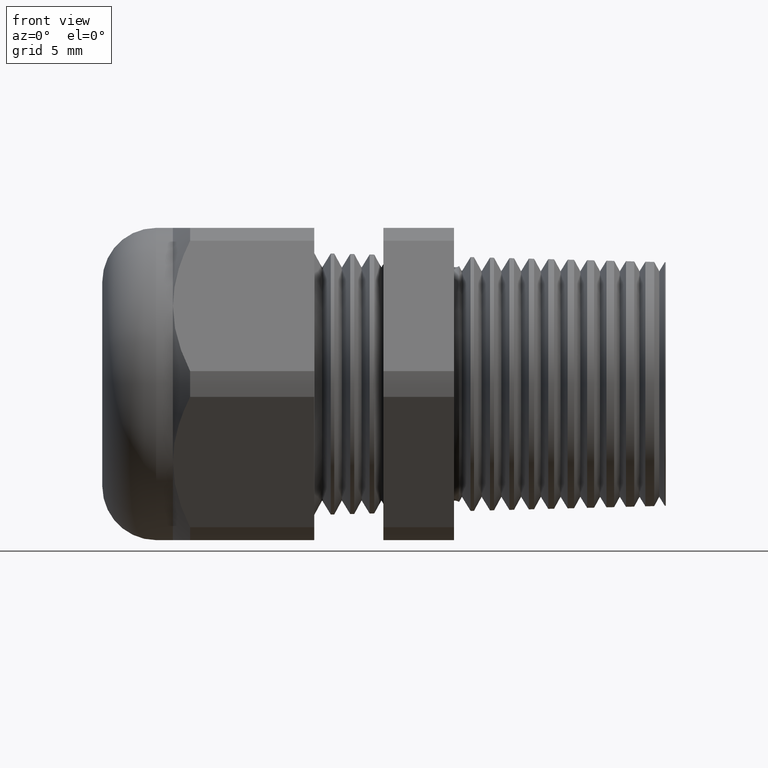
[diagram: clean part render]
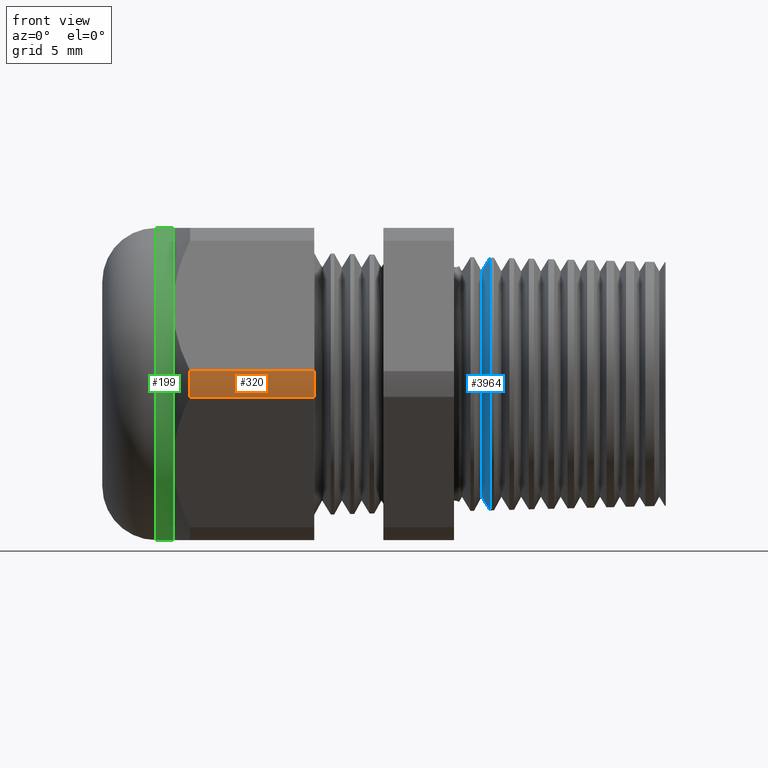
[diagram: same view with three faces highlighted in distinct colors, each labeled with its STEP entity id]
A machine part, front view with three faces highlighted in distinct colors.
Their STEP definitions:

[orange] entity #320 — the highlighted cylindrical surface (partial cylindrical patch) has radius 12.2644 mm, axis along (-1, 0, 0).
#246 = EDGE_CURVE ( 'NONE', #324, #298, #1546, .T. ) ;
#297 = EDGE_CURVE ( 'NONE', #298, #299, #1678, .T. ) ;
#298 = VERTEX_POINT ( 'NONE', #1674 ) ;
#299 = VERTEX_POINT ( 'NONE', #1673 ) ;
#320 = ADVANCED_FACE ( 'NONE', ( #1687 ), #1686, .T. ) ;
#321 = EDGE_LOOP ( 'NONE', ( #322, #326, #328, #329 ) ) ;
#322 = ORIENTED_EDGE ( 'NONE', *, *, #323, .T. ) ;
#323 = EDGE_CURVE ( 'NONE', #324, #325, #1739, .T. ) ;
#324 = VERTEX_POINT ( 'NONE', #1735 ) ;
#325 = VERTEX_POINT ( 'NONE', #1734 ) ;
#326 = ORIENTED_EDGE ( 'NONE', *, *, #327, .T. ) ;
#327 = EDGE_CURVE ( 'NONE', #325, #299, #1733, .T. ) ;
#328 = ORIENTED_EDGE ( 'NONE', *, *, #297, .F. ) ;
#329 = ORIENTED_EDGE ( 'NONE', *, *, #246, .F. ) ;
#1543 = DIRECTION ( 'NONE',  ( 0.0000000000000000000, 0.0000000000000000000, -1.000000000000000000 ) ) ;
#1544 = DIRECTION ( 'NONE',  ( 1.000000000000000000, 0.0000000000000000000, 0.0000000000000000000 ) ) ;
#1545 = AXIS2_PLACEMENT_3D ( 'NONE', #1550, #1544, #1543 ) ;
#1546 = CIRCLE ( 'NONE', #1545, 0.4828500000000001700 ) ;
#1550 = CARTESIAN_POINT ( 'NONE',  ( -0.6994488188976376600, 0.0000000000000000000, 0.0000000000000000000 ) ) ;
#1673 = CARTESIAN_POINT ( 'NONE',  ( -1.045299606299212600, -0.4815054990391103900, -0.03600801154045415300 ) ) ;
#1674 = CARTESIAN_POINT ( 'NONE',  ( -0.6994488188976376600, -0.4815054990391102200, -0.03600801154045414600 ) ) ;
#1675 = DIRECTION ( 'NONE',  ( -1.000000000000000000, 0.0000000000000000000, 0.0000000000000000000 ) ) ;
#1676 = VECTOR ( 'NONE', #1675, 39.37007874015748100 ) ;
#1677 = CARTESIAN_POINT ( 'NONE',  ( 0.2800000000000000300, -0.4815054990391102200, -0.03600801154045414600 ) ) ;
#1678 = LINE ( 'NONE', #1677, #1676 ) ;
#1685 = CARTESIAN_POINT ( 'NONE',  ( 0.2800000000000000300, 0.0000000000000000000, 0.0000000000000000000 ) ) ;
#1686 = CYLINDRICAL_SURFACE ( 'NONE', #1742, 0.4828500000000001700 ) ;
#1687 = FACE_OUTER_BOUND ( 'NONE', #321, .T. ) ;
#1729 = DIRECTION ( 'NONE',  ( 0.0000000000000000000, 0.0000000000000000000, -1.000000000000000000 ) ) ;
#1730 = DIRECTION ( 'NONE',  ( 1.000000000000000000, 0.0000000000000000000, 0.0000000000000000000 ) ) ;
#1731 = CARTESIAN_POINT ( 'NONE',  ( -1.045299606299212600, 0.0000000000000000000, 0.0000000000000000000 ) ) ;
#1732 = AXIS2_PLACEMENT_3D ( 'NONE', #1731, #1730, #1729 ) ;
#1733 = CIRCLE ( 'NONE', #1732, 0.4828500000000001700 ) ;
#1734 = CARTESIAN_POINT ( 'NONE',  ( -1.045299606299212600, -0.4815054990391102700, 0.03600801154045390300 ) ) ;
#1735 = CARTESIAN_POINT ( 'NONE',  ( -0.6994488188976376600, -0.4815054990391103900, 0.03600801154045398700 ) ) ;
#1736 = DIRECTION ( 'NONE',  ( -1.000000000000000000, 0.0000000000000000000, 0.0000000000000000000 ) ) ;
#1737 = VECTOR ( 'NONE', #1736, 39.37007874015748100 ) ;
#1738 = CARTESIAN_POINT ( 'NONE',  ( 0.2800000000000000300, -0.4815054990391103900, 0.03600801154045398700 ) ) ;
#1739 = LINE ( 'NONE', #1738, #1737 ) ;
#1740 = DIRECTION ( 'NONE',  ( 0.0000000000000000000, 0.0000000000000000000, 1.000000000000000000 ) ) ;
#1741 = DIRECTION ( 'NONE',  ( -1.000000000000000000, 0.0000000000000000000, 0.0000000000000000000 ) ) ;
#1742 = AXIS2_PLACEMENT_3D ( 'NONE', #1685, #1741, #1740 ) ;

[blue] entity #3964 — the highlighted conical surface has half-angle 58.5 deg.
#608 = EDGE_CURVE ( 'NONE', #3866, #3857, #2242, .T. ) ;
#2242 = CIRCLE ( 'NONE', #2300, 0.3521753825824424600 ) ;
#2297 = DIRECTION ( 'NONE',  ( 0.0000000000000000000, 0.0000000000000000000, -1.000000000000000000 ) ) ;
#2298 = DIRECTION ( 'NONE',  ( -1.000000000000000000, 0.0000000000000000000, 0.0000000000000000000 ) ) ;
#2299 = CARTESIAN_POINT ( 'NONE',  ( -0.2096964386471805200, 0.0000000000000000000, 0.0000000000000000000 ) ) ;
#2300 = AXIS2_PLACEMENT_3D ( 'NONE', #2299, #2298, #2297 ) ;
#3357 = CARTESIAN_POINT ( 'NONE',  ( -0.2329609809054343500, 4.087577259319993000E-017, -0.3142111000480301000 ) ) ;
#3358 = CARTESIAN_POINT ( 'NONE',  ( -0.2096964386471805200, 0.0000000000000000000, 0.3521753825824423500 ) ) ;
#3379 = DIRECTION ( 'NONE',  ( 0.5224985647159459100, 1.044183048100714500E-016, 0.8526401643540939500 ) ) ;
#3380 = CARTESIAN_POINT ( 'NONE',  ( -0.2329609809054343500, 3.847976179303888500E-017, 0.3142111000480301000 ) ) ;
#3381 = LINE ( 'NONE', #3380, #3442 ) ;
#3393 = DIRECTION ( 'NONE',  ( 0.5224985647159459100, 0.0000000000000000000, -0.8526401643540939500 ) ) ;
#3394 = VECTOR ( 'NONE', #3393, 39.37007874015748100 ) ;
#3395 = CARTESIAN_POINT ( 'NONE',  ( -0.2329609809054343500, 0.0000000000000000000, -0.3142111000480301000 ) ) ;
#3396 = LINE ( 'NONE', #3395, #3394 ) ;
#3403 = CARTESIAN_POINT ( 'NONE',  ( -0.2096964386471805200, 4.312904550180825500E-017, -0.3521753825824423500 ) ) ;
#3404 = CARTESIAN_POINT ( 'NONE',  ( -0.2329609809054343500, 0.0000000000000000000, 0.3142111000480301000 ) ) ;
#3442 = VECTOR ( 'NONE', #3379, 39.37007874015748100 ) ;
#3542 = DIRECTION ( 'NONE',  ( 0.0000000000000000000, 0.0000000000000000000, -1.000000000000000000 ) ) ;
#3543 = DIRECTION ( 'NONE',  ( 1.000000000000000000, 0.0000000000000000000, 0.0000000000000000000 ) ) ;
#3544 = CARTESIAN_POINT ( 'NONE',  ( -0.2329609809054343500, 0.0000000000000000000, 0.0000000000000000000 ) ) ;
#3545 = AXIS2_PLACEMENT_3D ( 'NONE', #3544, #3543, #3542 ) ;
#3547 = CONICAL_SURFACE ( 'NONE', #3545, 0.3142111000480301000, 1.021017612416686300 ) ;
#3548 = FACE_OUTER_BOUND ( 'NONE', #3963, .T. ) ;
#3596 = DIRECTION ( 'NONE',  ( 0.0000000000000000000, 0.0000000000000000000, -1.000000000000000000 ) ) ;
#3597 = DIRECTION ( 'NONE',  ( 1.000000000000000000, 0.0000000000000000000, 0.0000000000000000000 ) ) ;
#3598 = AXIS2_PLACEMENT_3D ( 'NONE', #3604, #3597, #3596 ) ;
#3599 = CIRCLE ( 'NONE', #3598, 0.3142111000480301000 ) ;
#3604 = CARTESIAN_POINT ( 'NONE',  ( -0.2329609809054343500, 0.0000000000000000000, 0.0000000000000000000 ) ) ;
#3857 = VERTEX_POINT ( 'NONE', #3358 ) ;
#3859 = VERTEX_POINT ( 'NONE', #3357 ) ;
#3864 = VERTEX_POINT ( 'NONE', #3404 ) ;
#3866 = VERTEX_POINT ( 'NONE', #3403 ) ;
#3870 = EDGE_CURVE ( 'NONE', #3859, #3866, #3396, .T. ) ;
#3877 = EDGE_CURVE ( 'NONE', #3864, #3857, #3381, .T. ) ;
#3963 = EDGE_LOOP ( 'NONE', ( #3978, #3977, #3979, #3981 ) ) ;
#3964 = ADVANCED_FACE ( 'NONE', ( #3548 ), #3547, .T. ) ;
#3975 = EDGE_CURVE ( 'NONE', #3864, #3859, #3599, .T. ) ;
#3977 = ORIENTED_EDGE ( 'NONE', *, *, #3975, .T. ) ;
#3978 = ORIENTED_EDGE ( 'NONE', *, *, #3877, .F. ) ;
#3979 = ORIENTED_EDGE ( 'NONE', *, *, #3870, .T. ) ;
#3981 = ORIENTED_EDGE ( 'NONE', *, *, #608, .T. ) ;

[green] entity #199 — the highlighted cylindrical surface (partial cylindrical patch) has radius 11.049 mm, axis along (1, 0, 0).
#192 = EDGE_CURVE ( 'NONE', #842, #841, #1447, .T. ) ;
#193 = ORIENTED_EDGE ( 'NONE', *, *, #192, .T. ) ;
#199 = ADVANCED_FACE ( 'NONE', ( #1493 ), #1492, .T. ) ;
#200 = EDGE_LOOP ( 'NONE', ( #201, #193, #803, #804, #802, #799 ) ) ;
#201 = ORIENTED_EDGE ( 'NONE', *, *, #3904, .F. ) ;
#302 = VERTEX_POINT ( 'NONE', #1671 ) ;
#449 = VERTEX_POINT ( 'NONE', #1977 ) ;
#799 = ORIENTED_EDGE ( 'NONE', *, *, #801, .F. ) ;
#800 = EDGE_CURVE ( 'NONE', #449, #302, #2581, .T. ) ;
#801 = EDGE_CURVE ( 'NONE', #3898, #449, #2576, .T. ) ;
#802 = ORIENTED_EDGE ( 'NONE', *, *, #800, .F. ) ;
#803 = ORIENTED_EDGE ( 'NONE', *, *, #4050, .T. ) ;
#804 = ORIENTED_EDGE ( 'NONE', *, *, #805, .F. ) ;
#805 = EDGE_CURVE ( 'NONE', #302, #4056, #2571, .T. ) ;
#841 = VERTEX_POINT ( 'NONE', #2673 ) ;
#842 = VERTEX_POINT ( 'NONE', #2672 ) ;
#1443 = DIRECTION ( 'NONE',  ( 0.0000000000000000000, 0.0000000000000000000, 1.000000000000000000 ) ) ;
#1444 = DIRECTION ( 'NONE',  ( 1.000000000000000000, 0.0000000000000000000, 0.0000000000000000000 ) ) ;
#1445 = CARTESIAN_POINT ( 'NONE',  ( -1.139999999999999900, 0.0000000000000000000, 0.0000000000000000000 ) ) ;
#1446 = AXIS2_PLACEMENT_3D ( 'NONE', #1445, #1444, #1443 ) ;
#1447 = CIRCLE ( 'NONE', #1446, 0.4350000000000000000 ) ;
#1488 = DIRECTION ( 'NONE',  ( 0.0000000000000000000, 0.0000000000000000000, -1.000000000000000000 ) ) ;
#1489 = DIRECTION ( 'NONE',  ( 1.000000000000000000, 0.0000000000000000000, 0.0000000000000000000 ) ) ;
#1490 = CARTESIAN_POINT ( 'NONE',  ( 0.0000000000000000000, 0.0000000000000000000, 0.0000000000000000000 ) ) ;
#1491 = AXIS2_PLACEMENT_3D ( 'NONE', #1490, #1489, #1488 ) ;
#1492 = CYLINDRICAL_SURFACE ( 'NONE', #1491, 0.4350000000000000000 ) ;
#1493 = FACE_OUTER_BOUND ( 'NONE', #200, .T. ) ;
#1671 = CARTESIAN_POINT ( 'NONE',  ( -1.093149606299212500, -0.3767210506462307900, -0.2175000000000000000 ) ) ;
#1977 = CARTESIAN_POINT ( 'NONE',  ( -1.093149606299212500, -0.3767210506462310100, 0.2174999999999999400 ) ) ;
#2567 = DIRECTION ( 'NONE',  ( 0.0000000000000000000, 0.0000000000000000000, -1.000000000000000000 ) ) ;
#2568 = DIRECTION ( 'NONE',  ( 1.000000000000000000, 0.0000000000000000000, 0.0000000000000000000 ) ) ;
#2569 = CARTESIAN_POINT ( 'NONE',  ( -1.093149606299212500, 0.0000000000000000000, 0.0000000000000000000 ) ) ;
#2570 = AXIS2_PLACEMENT_3D ( 'NONE', #2569, #2568, #2567 ) ;
#2571 = CIRCLE ( 'NONE', #2570, 0.4350000000000000000 ) ;
#2572 = DIRECTION ( 'NONE',  ( 0.0000000000000000000, 0.0000000000000000000, -1.000000000000000000 ) ) ;
#2573 = DIRECTION ( 'NONE',  ( 1.000000000000000000, 0.0000000000000000000, 0.0000000000000000000 ) ) ;
#2574 = CARTESIAN_POINT ( 'NONE',  ( -1.093149606299212500, 0.0000000000000000000, 0.0000000000000000000 ) ) ;
#2575 = AXIS2_PLACEMENT_3D ( 'NONE', #2574, #2573, #2572 ) ;
#2576 = CIRCLE ( 'NONE', #2575, 0.4350000000000000000 ) ;
#2577 = DIRECTION ( 'NONE',  ( 0.0000000000000000000, 0.0000000000000000000, -1.000000000000000000 ) ) ;
#2578 = DIRECTION ( 'NONE',  ( 1.000000000000000000, 0.0000000000000000000, 0.0000000000000000000 ) ) ;
#2579 = CARTESIAN_POINT ( 'NONE',  ( -1.093149606299212500, 0.0000000000000000000, 0.0000000000000000000 ) ) ;
#2580 = AXIS2_PLACEMENT_3D ( 'NONE', #2579, #2578, #2577 ) ;
#2581 = CIRCLE ( 'NONE', #2580, 0.4350000000000000000 ) ;
#2672 = CARTESIAN_POINT ( 'NONE',  ( -1.139999999999999900, 5.327213576290986400E-017, 0.4350000000000000000 ) ) ;
#2673 = CARTESIAN_POINT ( 'NONE',  ( -1.139999999999999900, 0.0000000000000000000, -0.4350000000000000000 ) ) ;
#3456 = DIRECTION ( 'NONE',  ( 1.000000000000000000, 0.0000000000000000000, 0.0000000000000000000 ) ) ;
#3457 = VECTOR ( 'NONE', #3456, 39.37007874015748100 ) ;
#3458 = CARTESIAN_POINT ( 'NONE',  ( 0.0000000000000000000, 5.327213576290986400E-017, 0.4350000000000000000 ) ) ;
#3459 = LINE ( 'NONE', #3458, #3457 ) ;
#3466 = CARTESIAN_POINT ( 'NONE',  ( -1.093149606299212500, 0.0000000000000000000, 0.4349999999999998900 ) ) ;
#3667 = CARTESIAN_POINT ( 'NONE',  ( -1.093149606299212500, 0.0000000000000000000, -0.4350000000000000500 ) ) ;
#3675 = DIRECTION ( 'NONE',  ( 1.000000000000000000, 0.0000000000000000000, 0.0000000000000000000 ) ) ;
#3676 = VECTOR ( 'NONE', #3675, 39.37007874015748100 ) ;
#3677 = CARTESIAN_POINT ( 'NONE',  ( 0.0000000000000000000, 0.0000000000000000000, -0.4350000000000000000 ) ) ;
#3678 = LINE ( 'NONE', #3677, #3676 ) ;
#3898 = VERTEX_POINT ( 'NONE', #3466 ) ;
#3904 = EDGE_CURVE ( 'NONE', #842, #3898, #3459, .T. ) ;
#4050 = EDGE_CURVE ( 'NONE', #841, #4056, #3678, .T. ) ;
#4056 = VERTEX_POINT ( 'NONE', #3667 ) ;